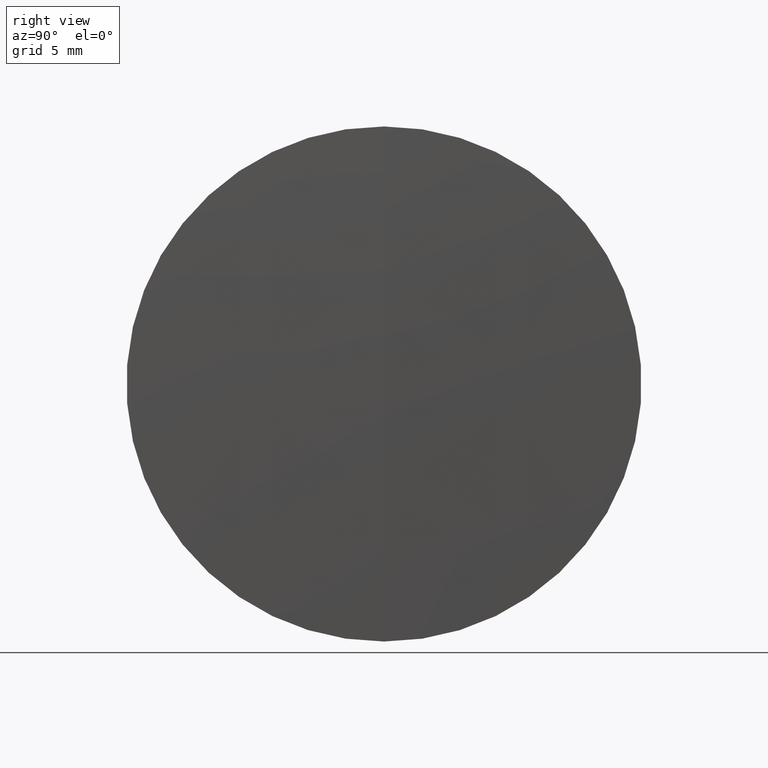
[diagram: clean part render]
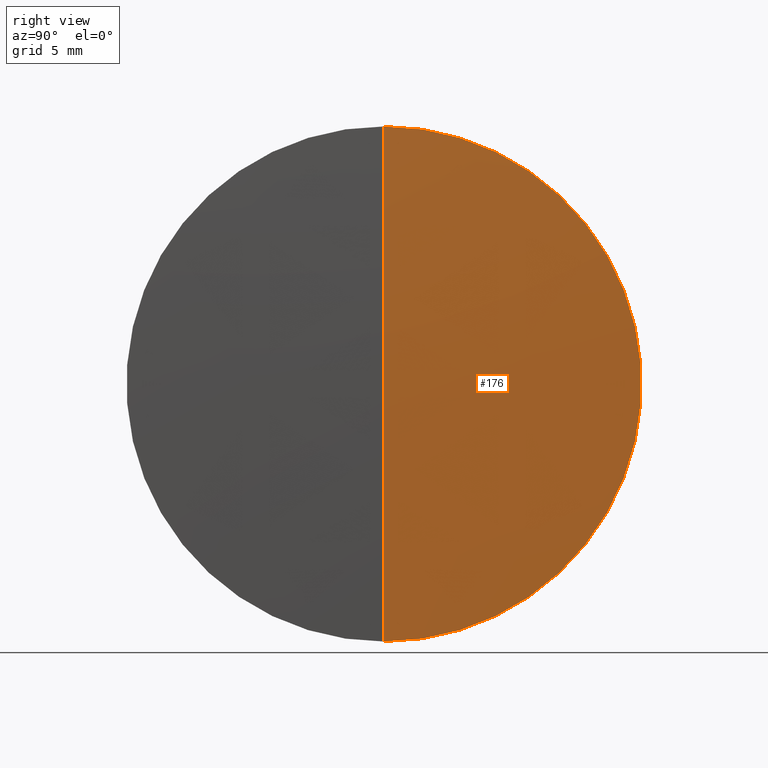
[diagram: same view with one face highlighted and labeled with its STEP entity id]
A machine part, right view. The second image highlights one B-rep face of the part: STEP entity #176.
In plain terms, the highlighted spherical surface has radius 535.816 mm.
Its self-contained STEP definition (entity closure, byte-faithful):
#12 = ORIENTED_EDGE ( 'NONE', *, *, #107, .F. ) ;
#16 = CIRCLE ( 'NONE', #233, 535.8160000000000300 ) ;
#47 = EDGE_LOOP ( 'NONE', ( #155, #265, #12 ) ) ;
#54 = AXIS2_PLACEMENT_3D ( 'NONE', #200, #302, #94 ) ;
#59 = CARTESIAN_POINT ( 'NONE',  ( 315.2376920384078900, 0.0000000000000000000, 19.99999999999996100 ) ) ;
#66 = DIRECTION ( 'NONE',  ( 0.0000000000000000000, 0.0000000000000000000, 1.000000000000000000 ) ) ;
#94 = DIRECTION ( 'NONE',  ( 0.0000000000000000000, 0.0000000000000000000, 1.000000000000000000 ) ) ;
#102 = DIRECTION ( 'NONE',  ( 0.0000000000000000000, -1.224646799147353500E-016, 1.000000000000000000 ) ) ;
#106 = EDGE_CURVE ( 'NONE', #130, #336, #16, .T. ) ;
#107 = EDGE_CURVE ( 'NONE', #216, #336, #156, .T. ) ;
#108 = DIRECTION ( 'NONE',  ( 0.0000000000000000000, -1.000000000000000000, 0.0000000000000000000 ) ) ;
#114 = SPHERICAL_SURFACE ( 'NONE', #54, 535.8160000000000300 ) ;
#123 = CARTESIAN_POINT ( 'NONE',  ( 315.6110846041469800, 0.0000000000000000000, 3.280926746659691900E-014 ) ) ;
#127 = CIRCLE ( 'NONE', #335, 535.8160000000000300 ) ;
#130 = VERTEX_POINT ( 'NONE', #123 ) ;
#155 = ORIENTED_EDGE ( 'NONE', *, *, #268, .F. ) ;
#156 = CIRCLE ( 'NONE', #257, 19.99999999999996100 ) ;
#176 = ADVANCED_FACE ( 'NONE', ( #333 ), #114, .T. ) ;
#200 = CARTESIAN_POINT ( 'NONE',  ( -220.2049153958530800, 0.0000000000000000000, 0.0000000000000000000 ) ) ;
#205 = DIRECTION ( 'NONE',  ( -1.000000000000000000, -0.0000000000000000000, -0.0000000000000000000 ) ) ;
#216 = VERTEX_POINT ( 'NONE', #59 ) ;
#223 = CARTESIAN_POINT ( 'NONE',  ( 315.2376920384078900, 2.449293598294701800E-015, -19.99999999999996100 ) ) ;
#233 = AXIS2_PLACEMENT_3D ( 'NONE', #261, #282, #102 ) ;
#237 = CARTESIAN_POINT ( 'NONE',  ( 315.2376920384078900, 0.0000000000000000000, 0.0000000000000000000 ) ) ;
#257 = AXIS2_PLACEMENT_3D ( 'NONE', #237, #205, #66 ) ;
#261 = CARTESIAN_POINT ( 'NONE',  ( -220.2049153958530800, 0.0000000000000000000, 0.0000000000000000000 ) ) ;
#263 = DIRECTION ( 'NONE',  ( 0.0000000000000000000, 0.0000000000000000000, -1.000000000000000000 ) ) ;
#265 = ORIENTED_EDGE ( 'NONE', *, *, #106, .T. ) ;
#268 = EDGE_CURVE ( 'NONE', #130, #216, #127, .T. ) ;
#282 = DIRECTION ( 'NONE',  ( -0.0000000000000000000, 1.000000000000000000, 1.224646799147353200E-016 ) ) ;
#291 = CARTESIAN_POINT ( 'NONE',  ( -220.2049153958530800, 0.0000000000000000000, 0.0000000000000000000 ) ) ;
#302 = DIRECTION ( 'NONE',  ( 0.0000000000000000000, 1.000000000000000000, 0.0000000000000000000 ) ) ;
#333 = FACE_OUTER_BOUND ( 'NONE', #47, .T. ) ;
#335 = AXIS2_PLACEMENT_3D ( 'NONE', #291, #108, #263 ) ;
#336 = VERTEX_POINT ( 'NONE', #223 ) ;